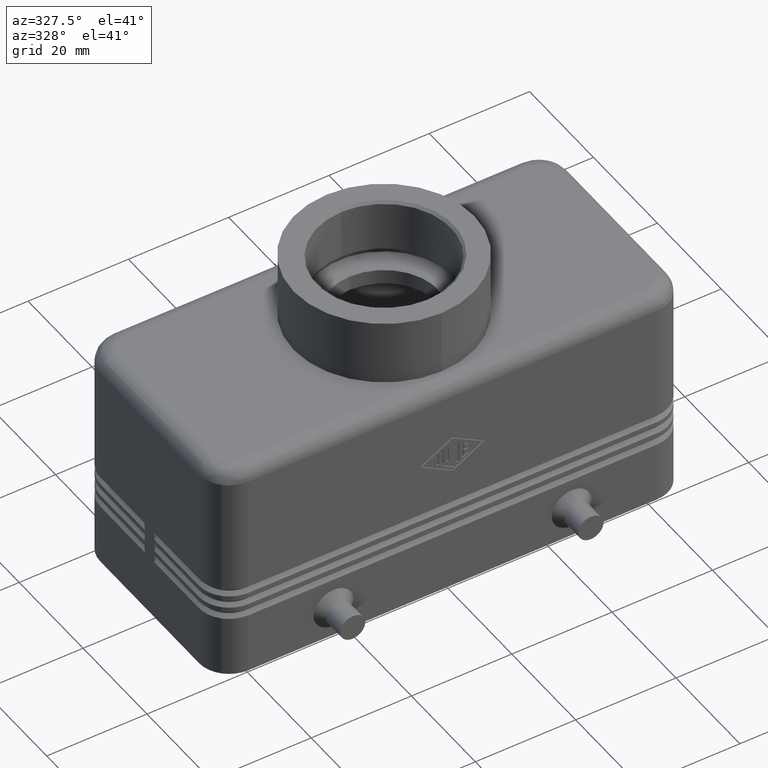
[diagram: clean part render]
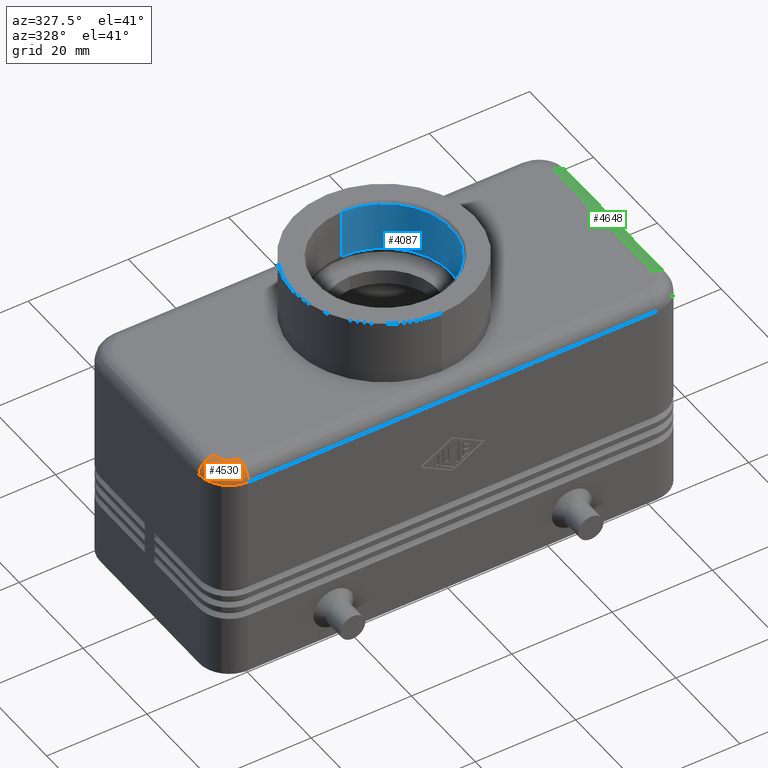
[diagram: same view with three faces highlighted in distinct colors, each labeled with its STEP entity id]
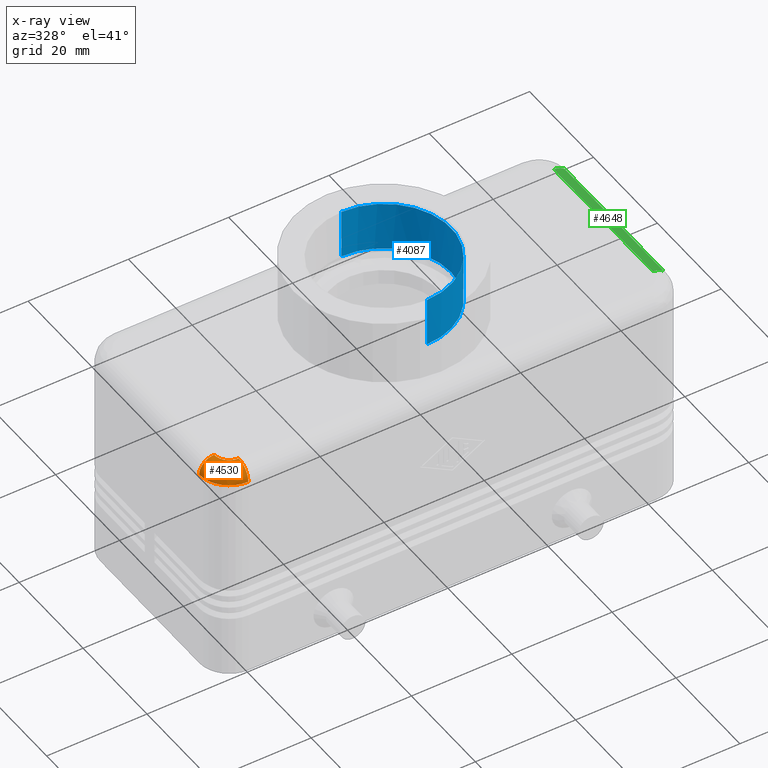
[diagram: x-ray of the same camera — body ghosted, the three highlighted faces saturated]
A machine part, auxiliary view with three faces highlighted in distinct colors.
The next image is the same camera in x-ray (body ghosted, the three faces saturated) — at least one of them is partly hidden behind the body in this view.
Their STEP definitions:

[orange] entity #4530 — the highlighted face is a freeform B-spline surface patch.
#692=CARTESIAN_POINT('',(-44.992640687119277,-19.742640687119284,42.000000000000014));
#693=VERTEX_POINT('',#692);
#709=CARTESIAN_POINT('',(-40.749999999999993,-21.500000000000000,41.999999999999993));
#710=VERTEX_POINT('',#709);
#717=CARTESIAN_POINT('',(-40.749999999999993,-15.499999999999998,42.000000000000014));
#718=DIRECTION('',(0.0,0.0,1.0));
#719=DIRECTION('',(-0.707106781186548,-0.707106781186547,0.0));
#720=AXIS2_PLACEMENT_3D('',#717,#718,#719);
#721=CIRCLE('',#720,6.000000000000001);
#722=EDGE_CURVE('',#693,#710,#721,.T.);
#2710=CARTESIAN_POINT('',(-45.871320343559631,-15.499999999999998,44.121320343559638));
#2711=VERTEX_POINT('',#2710);
#2720=CARTESIAN_POINT('',(-43.750000000000000,-15.499999999999998,44.999999999999993));
#2721=VERTEX_POINT('',#2720);
#2722=CARTESIAN_POINT('',(-43.750000000000000,-15.499999999999998,42.000000000000014));
#2723=DIRECTION('',(0.0,-1.0,0.0));
#2724=DIRECTION('',(0.0,0.0,1.0));
#2725=AXIS2_PLACEMENT_3D('',#2722,#2723,#2724);
#2726=CIRCLE('',#2725,2.999999999999981);
#2727=EDGE_CURVE('',#2721,#2711,#2726,.T.);
#2752=CARTESIAN_POINT('',(-40.749999999999993,-20.621320343559638,44.121320343559638));
#2753=VERTEX_POINT('',#2752);
#2762=CARTESIAN_POINT('',(-40.749999999999993,-18.500000000000000,41.999999999999993));
#2763=DIRECTION('',(1.0,0.0,0.0));
#2764=DIRECTION('',(0.0,0.0,1.0));
#2765=AXIS2_PLACEMENT_3D('',#2762,#2763,#2764);
#2766=CIRCLE('',#2765,2.999999999999998);
#2767=EDGE_CURVE('',#2753,#710,#2766,.T.);
#3797=CARTESIAN_POINT('',(-40.749999999999993,-18.500000000000000,44.999999999999993));
#3798=VERTEX_POINT('',#3797);
#3799=CARTESIAN_POINT('',(-40.749999999999993,-15.499999999999998,44.999999999999993));
#3800=DIRECTION('',(0.0,0.0,-1.0));
#3801=DIRECTION('',(-0.707106781186548,-0.707106781186547,0.0));
#3802=AXIS2_PLACEMENT_3D('',#3799,#3800,#3801);
#3803=CIRCLE('',#3802,3.000000000000000);
#3804=EDGE_CURVE('',#3798,#2721,#3803,.T.);
#4444=CARTESIAN_POINT('',(-40.749999999999993,-18.500000000000000,41.999999999999993));
#4445=DIRECTION('',(1.0,0.0,0.0));
#4446=DIRECTION('',(0.0,0.0,1.0));
#4447=AXIS2_PLACEMENT_3D('',#4444,#4445,#4446);
#4448=CIRCLE('',#4447,2.999999999999998);
#4449=EDGE_CURVE('',#3798,#2753,#4448,.T.);
#4454=CARTESIAN_POINT('',(-40.749999750000022,-15.499999999999998,42.001224744769345));
#4455=CARTESIAN_POINT('',(-40.748775255205146,-15.499999999999998,45.000612184910224));
#4456=CARTESIAN_POINT('',(-37.749387627602559,-15.499999999999998,44.999999937500021));
#4457=CARTESIAN_POINT('',(-34.749999999999972,-15.499999999999998,44.999387690089819));
#4458=CARTESIAN_POINT('',(-34.749999999999993,-15.499999999999998,41.999999999999993));
#4459=CARTESIAN_POINT('',(-40.749999750000022,-15.499999750000027,42.001224744769345));
#4460=CARTESIAN_POINT('',(-40.748775255205146,-15.498775255205151,45.000612184910224));
#4461=CARTESIAN_POINT('',(-37.749387627602559,-12.499387627602566,44.999999937500021));
#4462=CARTESIAN_POINT('',(-34.749999999999972,-9.499999999999979,44.999387690089819));
#4463=CARTESIAN_POINT('',(-34.749999999999993,-9.500000000000000,41.999999999999993));
#4464=CARTESIAN_POINT('',(-40.749999999999993,-15.499999750000027,42.001224744769345));
#4465=CARTESIAN_POINT('',(-40.749999999999993,-15.498775255205151,45.000612184910224));
#4466=CARTESIAN_POINT('',(-40.749999999999993,-12.499387627602564,44.999999937500021));
#4467=CARTESIAN_POINT('',(-40.749999999999993,-9.499999999999977,44.999387690089819));
#4468=CARTESIAN_POINT('',(-40.749999999999993,-9.499999999999998,41.999999999999993));
#4469=CARTESIAN_POINT('',(-40.750000249999964,-15.499999750000027,42.001224744769345));
#4470=CARTESIAN_POINT('',(-40.751224744794840,-15.498775255205151,45.000612184910224));
#4471=CARTESIAN_POINT('',(-43.750612372397427,-12.499387627602566,44.999999937500021));
#4472=CARTESIAN_POINT('',(-46.750000000000014,-9.499999999999979,44.999387690089819));
#4473=CARTESIAN_POINT('',(-46.749999999999993,-9.500000000000000,41.999999999999993));
#4474=CARTESIAN_POINT('',(-40.750000249999964,-15.499999999999998,42.001224744769345));
#4475=CARTESIAN_POINT('',(-40.751224744794840,-15.499999999999998,45.000612184910224));
#4476=CARTESIAN_POINT('',(-43.750612372397427,-15.499999999999998,44.999999937500021));
#4477=CARTESIAN_POINT('',(-46.750000000000014,-15.499999999999998,44.999387690089819));
#4478=CARTESIAN_POINT('',(-46.749999999999993,-15.499999999999998,41.999999999999993));
#4479=CARTESIAN_POINT('',(-40.750000249999964,-15.500000249999969,42.001224744769345));
#4480=CARTESIAN_POINT('',(-40.751224744794840,-15.501224744794845,45.000612184910224));
#4481=CARTESIAN_POINT('',(-43.750612372397427,-18.500612372397431,44.999999937500021));
#4482=CARTESIAN_POINT('',(-46.750000000000014,-21.500000000000018,44.999387690089819));
#4483=CARTESIAN_POINT('',(-46.749999999999993,-21.499999999999996,41.999999999999993));
#4484=CARTESIAN_POINT('',(-40.749999999999993,-15.500000249999969,42.001224744769345));
#4485=CARTESIAN_POINT('',(-40.749999999999993,-15.501224744794843,45.000612184910224));
#4486=CARTESIAN_POINT('',(-40.749999999999993,-18.500612372397434,44.999999937500021));
#4487=CARTESIAN_POINT('',(-40.749999999999993,-21.500000000000021,44.999387690089819));
#4488=CARTESIAN_POINT('',(-40.749999999999993,-21.500000000000000,41.999999999999993));
#4489=CARTESIAN_POINT('',(-40.749999750000022,-15.500000249999969,42.001224744769345));
#4490=CARTESIAN_POINT('',(-40.748775255205146,-15.501224744794845,45.000612184910224));
#4491=CARTESIAN_POINT('',(-37.749387627602559,-18.500612372397431,44.999999937500021));
#4492=CARTESIAN_POINT('',(-34.749999999999972,-21.500000000000018,44.999387690089819));
#4493=CARTESIAN_POINT('',(-34.749999999999993,-21.499999999999996,41.999999999999993));
#4494=CARTESIAN_POINT('',(-40.749999750000022,-15.499999999999998,42.001224744769345));
#4495=CARTESIAN_POINT('',(-40.748775255205146,-15.499999999999998,45.000612184910224));
#4496=CARTESIAN_POINT('',(-37.749387627602559,-15.499999999999998,44.999999937500021));
#4497=CARTESIAN_POINT('',(-34.749999999999972,-15.499999999999998,44.999387690089819));
#4498=CARTESIAN_POINT('',(-34.749999999999993,-15.499999999999998,41.999999999999993));
#4506=(BOUNDED_SURFACE()B_SPLINE_SURFACE(2,2,((#4454,#4459,#4464,#4469,#4474,#4479,#4484,#4489,#4494),(#4455,#4460,#4465,#4470,#4475,#4480,#4485,#4490,#4495),(#4456,#4461,#4466,#4471,#4476,#4481,#4486,#4491,#4496),(#4457,#4462,#4467,#4472,#4477,#4482,#4487,#4492,#4497),(#4458,#4463,#4468,#4473,#4478,#4483,#4488,#4493,#4498)),.UNSPECIFIED.,.F.,.T.,.U.)B_SPLINE_SURFACE_WITH_KNOTS((3,2,3),(3,2,2,2,3),(-3.141184405322010,-1.570592202661001,7.105427E-015),(0.0,1.570796326794897,3.141592653589793,4.712388980384690,6.283185307179586),.UNSPECIFIED.)GEOMETRIC_REPRESENTATION_ITEM()RATIONAL_B_SPLINE_SURFACE(((1.0,0.707106781186548,1.0,0.707106781186548,1.0,0.707106781186548,1.0,0.707106781186548,1.0),(0.707178946283215,0.500051028429219,0.707178946283215,0.500051028429219,0.707178946283215,0.500051028429219,0.707178946283215,0.500051028429219,0.707178946283215),(1.0,0.707106781186548,1.0,0.707106781186548,1.0,0.707106781186548,1.0,0.707106781186548,1.0),(0.707178946283212,0.500051028429217,0.707178946283212,0.500051028429217,0.707178946283212,0.500051028429217,0.707178946283212,0.500051028429217,0.707178946283212),(1.0,0.707106781186548,1.0,0.707106781186548,1.0,0.707106781186548,1.0,0.707106781186548,1.0)))REPRESENTATION_ITEM('')SURFACE());
#4507=ORIENTED_EDGE('',*,*,#2727,.T.);
#4508=CARTESIAN_POINT('',(-46.749999999999986,-15.499999999999998,42.000000000000014));
#4509=VERTEX_POINT('',#4508);
#4510=CARTESIAN_POINT('',(-43.750000000000000,-15.499999999999998,42.000000000000014));
#4511=DIRECTION('',(0.0,-1.0,0.0));
#4512=DIRECTION('',(0.0,0.0,1.0));
#4513=AXIS2_PLACEMENT_3D('',#4510,#4511,#4512);
#4514=CIRCLE('',#4513,2.999999999999981);
#4515=EDGE_CURVE('',#2711,#4509,#4514,.T.);
#4516=ORIENTED_EDGE('',*,*,#4515,.T.);
#4517=CARTESIAN_POINT('',(-40.749999999999993,-15.499999999999998,42.000000000000014));
#4518=DIRECTION('',(0.0,0.0,1.0));
#4519=DIRECTION('',(-0.707106781186548,-0.707106781186547,0.0));
#4520=AXIS2_PLACEMENT_3D('',#4517,#4518,#4519);
#4521=CIRCLE('',#4520,6.000000000000001);
#4522=EDGE_CURVE('',#4509,#693,#4521,.T.);
#4523=ORIENTED_EDGE('',*,*,#4522,.T.);
#4524=ORIENTED_EDGE('',*,*,#722,.T.);
#4525=ORIENTED_EDGE('',*,*,#2767,.F.);
#4526=ORIENTED_EDGE('',*,*,#4449,.F.);
#4527=ORIENTED_EDGE('',*,*,#3804,.T.);
#4528=EDGE_LOOP('',(#4507,#4516,#4523,#4524,#4525,#4526,#4527));
#4529=FACE_OUTER_BOUND('',#4528,.T.);
#4530=ADVANCED_FACE('',(#4529),#4506,.T.);

[blue] entity #4087 — the highlighted cylindrical surface (partial cylindrical patch) has radius 13.39 mm, axis along (0, 0, -1).
#3214=CARTESIAN_POINT('',(0.0,13.389999999999997,57.500000000000000));
#3215=VERTEX_POINT('',#3214);
#3231=CARTESIAN_POINT('',(1.639748E-015,-13.390000000000006,57.500000000000000));
#3232=VERTEX_POINT('',#3231);
#3254=CARTESIAN_POINT('',(0.0,13.390000000000001,47.618033988749893));
#3255=VERTEX_POINT('',#3254);
#3256=CARTESIAN_POINT('',(0.0,13.389999999999997,57.500000000000000));
#3257=DIRECTION('',(0.0,0.0,-1.0));
#3258=VECTOR('',#3257,9.881966011250107);
#3259=LINE('',#3256,#3258);
#3260=EDGE_CURVE('',#3215,#3255,#3259,.T.);
#3263=CARTESIAN_POINT('',(1.639748E-015,-13.390000000000004,47.618033988749900));
#3264=VERTEX_POINT('',#3263);
#3265=CARTESIAN_POINT('',(1.639748E-015,-13.390000000000004,47.618033988749900));
#3266=DIRECTION('',(0.0,0.0,1.0));
#3267=VECTOR('',#3266,9.881966011250100);
#3268=LINE('',#3265,#3267);
#3269=EDGE_CURVE('',#3264,#3232,#3268,.T.);
#3352=CARTESIAN_POINT('',(13.390000000000002,-8.308242E-016,47.618033988749900));
#3353=VERTEX_POINT('',#3352);
#3354=CARTESIAN_POINT('',(0.0,-1.704303E-015,47.618033988749893));
#3355=DIRECTION('',(0.0,0.0,-1.0));
#3356=DIRECTION('',(0.0,1.0,0.0));
#3357=AXIS2_PLACEMENT_3D('',#3354,#3355,#3356);
#3358=CIRCLE('',#3357,13.390000000000002);
#3359=EDGE_CURVE('',#3353,#3264,#3358,.T.);
#4057=CARTESIAN_POINT('',(0.0,-1.704303E-015,47.618033988749893));
#4058=DIRECTION('',(0.0,0.0,-1.0));
#4059=DIRECTION('',(0.0,1.0,0.0));
#4060=AXIS2_PLACEMENT_3D('',#4057,#4058,#4059);
#4061=CIRCLE('',#4060,13.390000000000002);
#4062=EDGE_CURVE('',#3255,#3353,#4061,.T.);
#4069=CARTESIAN_POINT('',(0.0,-2.809697E-015,52.559016994374943));
#4070=DIRECTION('',(0.0,2.237195E-016,-1.0));
#4071=DIRECTION('',(0.0,1.0,0.0));
#4072=AXIS2_PLACEMENT_3D('',#4069,#4070,#4071);
#4073=CYLINDRICAL_SURFACE('',#4072,13.390000000000002);
#4074=ORIENTED_EDGE('',*,*,#3260,.T.);
#4075=ORIENTED_EDGE('',*,*,#4062,.T.);
#4076=ORIENTED_EDGE('',*,*,#3359,.T.);
#4077=ORIENTED_EDGE('',*,*,#3269,.T.);
#4078=CARTESIAN_POINT('',(0.0,-3.915092E-015,57.500000000000000));
#4079=DIRECTION('',(0.0,0.0,-1.0));
#4080=DIRECTION('',(0.0,1.0,0.0));
#4081=AXIS2_PLACEMENT_3D('',#4078,#4079,#4080);
#4082=CIRCLE('',#4081,13.390000000000002);
#4083=EDGE_CURVE('',#3215,#3232,#4082,.T.);
#4084=ORIENTED_EDGE('',*,*,#4083,.F.);
#4085=EDGE_LOOP('',(#4074,#4075,#4076,#4077,#4084));
#4086=FACE_OUTER_BOUND('',#4085,.T.);
#4087=ADVANCED_FACE('',(#4086),#4073,.F.);

[green] entity #4648 — the highlighted cylindrical surface (edge-blend (fillet) strip) has radius 3 mm, axis along (0, 1, 0).
#2668=CARTESIAN_POINT('',(45.871320343559624,-15.499999999999998,44.121320343559645));
#2669=VERTEX_POINT('',#2668);
#2670=CARTESIAN_POINT('',(45.871320343559617,15.499999999999998,44.121320343559645));
#2671=VERTEX_POINT('',#2670);
#2672=CARTESIAN_POINT('',(45.871320343559624,-15.499999999999998,44.121320343559645));
#2673=DIRECTION('',(0.0,1.0,0.0));
#2674=VECTOR('',#2673,30.999999999999996);
#2675=LINE('',#2672,#2674);
#2676=EDGE_CURVE('',#2669,#2671,#2675,.T.);
#3762=CARTESIAN_POINT('',(43.749999999999993,15.499999999999998,44.999999999999993));
#3763=VERTEX_POINT('',#3762);
#3764=CARTESIAN_POINT('',(43.749999999999986,-15.499999999999998,44.999999999999993));
#3765=VERTEX_POINT('',#3764);
#3766=CARTESIAN_POINT('',(43.749999999999993,15.499999999999998,44.999999999999993));
#3767=DIRECTION('',(0.0,-1.0,0.0));
#3768=VECTOR('',#3767,30.999999999999996);
#3769=LINE('',#3766,#3768);
#3770=EDGE_CURVE('',#3763,#3765,#3769,.T.);
#4585=CARTESIAN_POINT('',(43.749999999999986,-15.499999999999998,41.999999999999993));
#4586=DIRECTION('',(0.0,-1.0,0.0));
#4587=DIRECTION('',(1.0,0.0,0.0));
#4588=AXIS2_PLACEMENT_3D('',#4585,#4586,#4587);
#4589=CIRCLE('',#4588,3.000000000000007);
#4590=EDGE_CURVE('',#2669,#3765,#4589,.T.);
#4631=CARTESIAN_POINT('',(43.749999999999993,0.0,41.999999999999993));
#4632=DIRECTION('',(0.0,1.0,0.0));
#4633=DIRECTION('',(0.707106781186545,0.0,0.707106781186550));
#4634=AXIS2_PLACEMENT_3D('',#4631,#4632,#4633);
#4635=CYLINDRICAL_SURFACE('',#4634,3.000000000000000);
#4636=ORIENTED_EDGE('',*,*,#2676,.T.);
#4637=CARTESIAN_POINT('',(43.749999999999993,15.499999999999998,41.999999999999993));
#4638=DIRECTION('',(0.0,-1.0,0.0));
#4639=DIRECTION('',(1.0,0.0,0.0));
#4640=AXIS2_PLACEMENT_3D('',#4637,#4638,#4639);
#4641=CIRCLE('',#4640,2.999999999999998);
#4642=EDGE_CURVE('',#2671,#3763,#4641,.T.);
#4643=ORIENTED_EDGE('',*,*,#4642,.T.);
#4644=ORIENTED_EDGE('',*,*,#3770,.T.);
#4645=ORIENTED_EDGE('',*,*,#4590,.F.);
#4646=EDGE_LOOP('',(#4636,#4643,#4644,#4645));
#4647=FACE_OUTER_BOUND('',#4646,.T.);
#4648=ADVANCED_FACE('',(#4647),#4635,.T.);